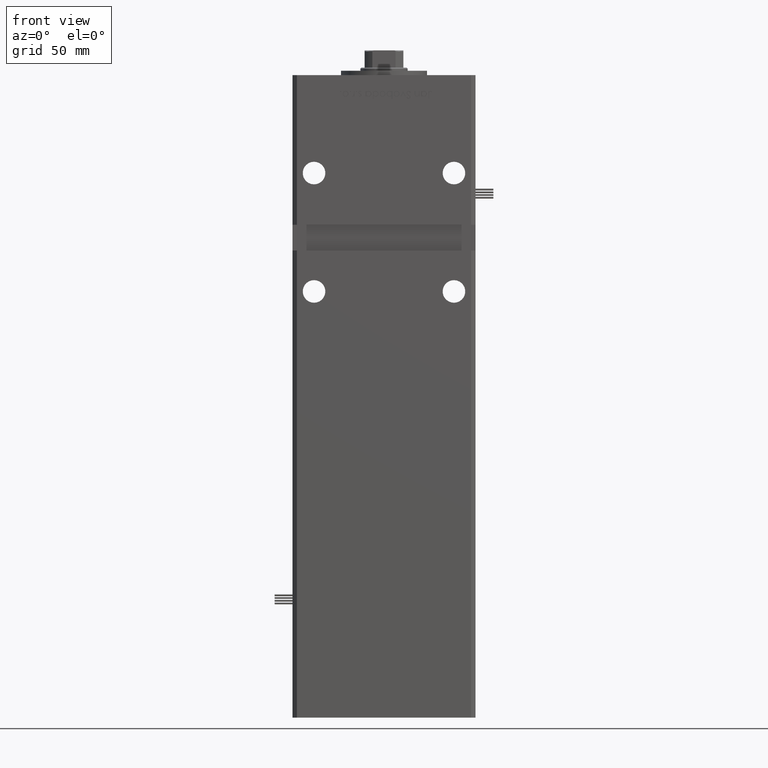
[diagram: clean part render]
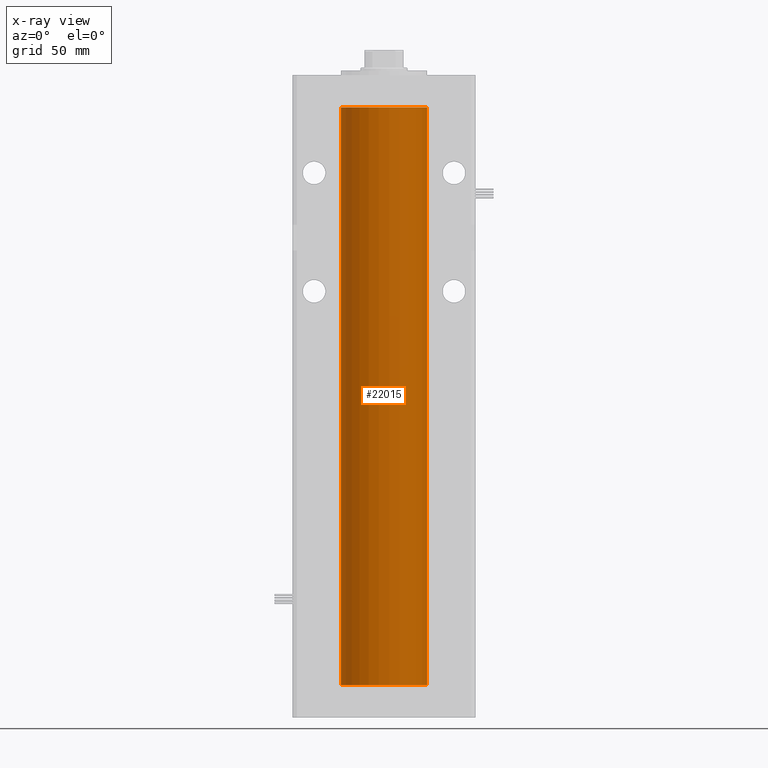
[diagram: x-ray — body ghosted, one internal face saturated and labeled with its STEP entity id]
A machine part, front view, then the same camera in x-ray: the body is ghosted and one INTERNAL B-rep face — a face not visible from any outside direction — is saturated and labeled: STEP entity #22015.
In plain terms, the highlighted cylindrical surface (partial cylindrical patch) has radius 20 mm, axis along (-0, -0, -1).
Its self-contained STEP definition (entity closure, byte-faithful):
#1196 = VERTEX_POINT ( 'NONE', #4671 ) ;
#1408 = DIRECTION ( 'NONE',  ( 1.000000000000000000, 0.000000000000000000, 0.000000000000000000 ) ) ;
#3081 = CARTESIAN_POINT ( 'NONE',  ( 0.000000000000000000, 0.000000000000000000, 0.000000000000000000 ) ) ;
#3765 = VECTOR ( 'NONE', #14012, 1000.000000000000000 ) ;
#4671 = CARTESIAN_POINT ( 'NONE',  ( -20.00000000000000000, 0.000000000000000000, 0.000000000000000000 ) ) ;
#6325 = DIRECTION ( 'NONE',  ( -1.000000000000000000, 0.000000000000000000, 0.000000000000000000 ) ) ;
#6330 = CARTESIAN_POINT ( 'NONE',  ( -20.00000000000000000, 0.000000000000000000, 268.5000000000000000 ) ) ;
#8172 = DIRECTION ( 'NONE',  ( -0.000000000000000000, 0.000000000000000000, 1.000000000000000000 ) ) ;
#11160 = CARTESIAN_POINT ( 'NONE',  ( 0.000000000000000000, 0.000000000000000000, 268.5000000000000000 ) ) ;
#12189 = CARTESIAN_POINT ( 'NONE',  ( 20.00000000000000000, 2.449293598294706513E-15, 268.5000000000000000 ) ) ;
#12386 = AXIS2_PLACEMENT_3D ( 'NONE', #3081, #8172, #51036 ) ;
#14012 = DIRECTION ( 'NONE',  ( -0.000000000000000000, -0.000000000000000000, -1.000000000000000000 ) ) ;
#17925 = AXIS2_PLACEMENT_3D ( 'NONE', #11160, #42068, #6325 ) ;
#17944 = ORIENTED_EDGE ( 'NONE', *, *, #27792, .T. ) ;
#18164 = EDGE_CURVE ( 'NONE', #1196, #50939, #33318, .T. ) ;
#20464 = DIRECTION ( 'NONE',  ( -0.000000000000000000, -0.000000000000000000, -1.000000000000000000 ) ) ;
#22015 = ADVANCED_FACE ( 'NONE', ( #54024 ), #54865, .F. ) ;
#23259 = CARTESIAN_POINT ( 'NONE',  ( 20.00000000000000000, 2.449293598294706513E-15, 0.000000000000000000 ) ) ;
#27792 = EDGE_CURVE ( 'NONE', #31906, #50939, #46294, .T. ) ;
#30784 = VECTOR ( 'NONE', #20464, 1000.000000000000000 ) ;
#30915 = CARTESIAN_POINT ( 'NONE',  ( 0.000000000000000000, 0.000000000000000000, 268.5000000000000000 ) ) ;
#31906 = VERTEX_POINT ( 'NONE', #12189 ) ;
#32403 = CARTESIAN_POINT ( 'NONE',  ( -20.00000000000000000, 0.000000000000000000, 268.5000000000000000 ) ) ;
#32428 = ORIENTED_EDGE ( 'NONE', *, *, #45476, .T. ) ;
#33318 = CIRCLE ( 'NONE', #12386, 20.00000000000000000 ) ;
#35377 = CIRCLE ( 'NONE', #41688, 20.00000000000000000 ) ;
#40574 = DIRECTION ( 'NONE',  ( -0.000000000000000000, 0.000000000000000000, 1.000000000000000000 ) ) ;
#40667 = LINE ( 'NONE', #6330, #3765 ) ;
#41688 = AXIS2_PLACEMENT_3D ( 'NONE', #30915, #40574, #1408 ) ;
#42025 = CARTESIAN_POINT ( 'NONE',  ( 20.00000000000000000, 2.449293598294706513E-15, 268.5000000000000000 ) ) ;
#42068 = DIRECTION ( 'NONE',  ( -0.000000000000000000, -0.000000000000000000, -1.000000000000000000 ) ) ;
#42930 = ORIENTED_EDGE ( 'NONE', *, *, #49394, .F. ) ;
#45476 = EDGE_CURVE ( 'NONE', #53685, #31906, #35377, .T. ) ;
#46294 = LINE ( 'NONE', #42025, #30784 ) ;
#48821 = ORIENTED_EDGE ( 'NONE', *, *, #18164, .F. ) ;
#49394 = EDGE_CURVE ( 'NONE', #53685, #1196, #40667, .T. ) ;
#50939 = VERTEX_POINT ( 'NONE', #23259 ) ;
#51036 = DIRECTION ( 'NONE',  ( 1.000000000000000000, 0.000000000000000000, 0.000000000000000000 ) ) ;
#51318 = EDGE_LOOP ( 'NONE', ( #32428, #17944, #48821, #42930 ) ) ;
#53685 = VERTEX_POINT ( 'NONE', #32403 ) ;
#54024 = FACE_OUTER_BOUND ( 'NONE', #51318, .T. ) ;
#54865 = CYLINDRICAL_SURFACE ( 'NONE', #17925, 20.00000000000000000 ) ;